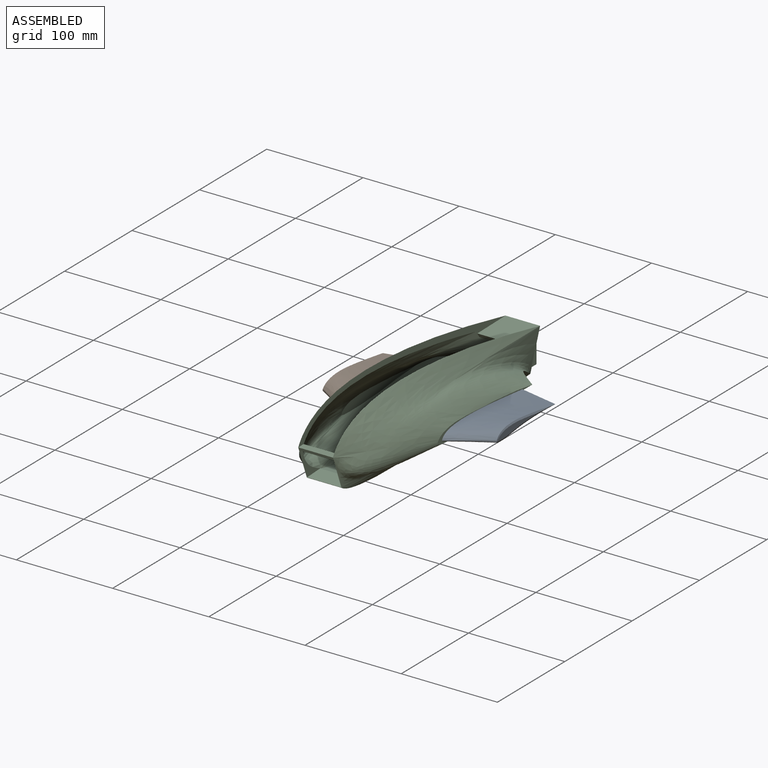
[diagram: assembled view]
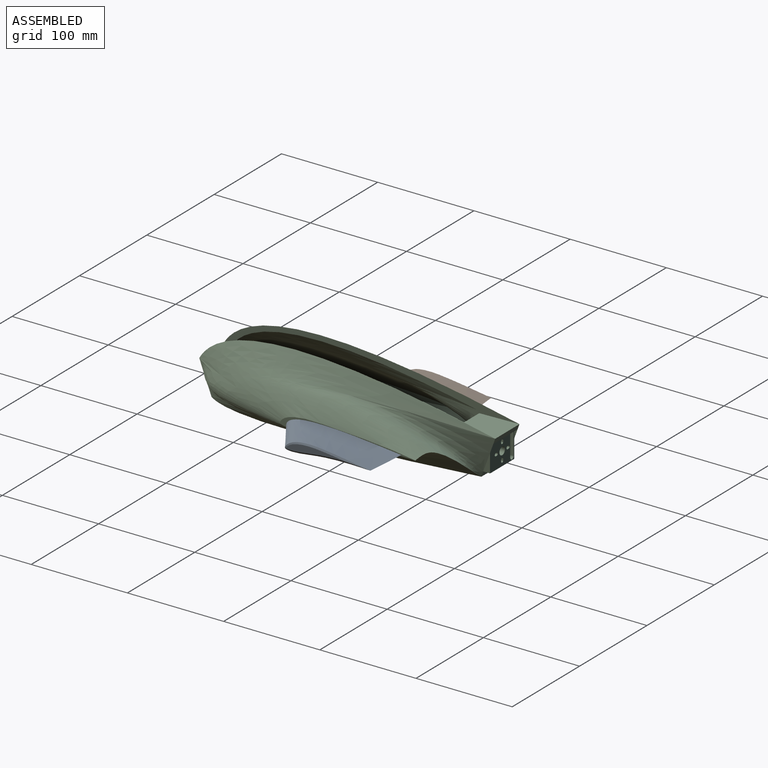
[diagram: assembled view, second angle]
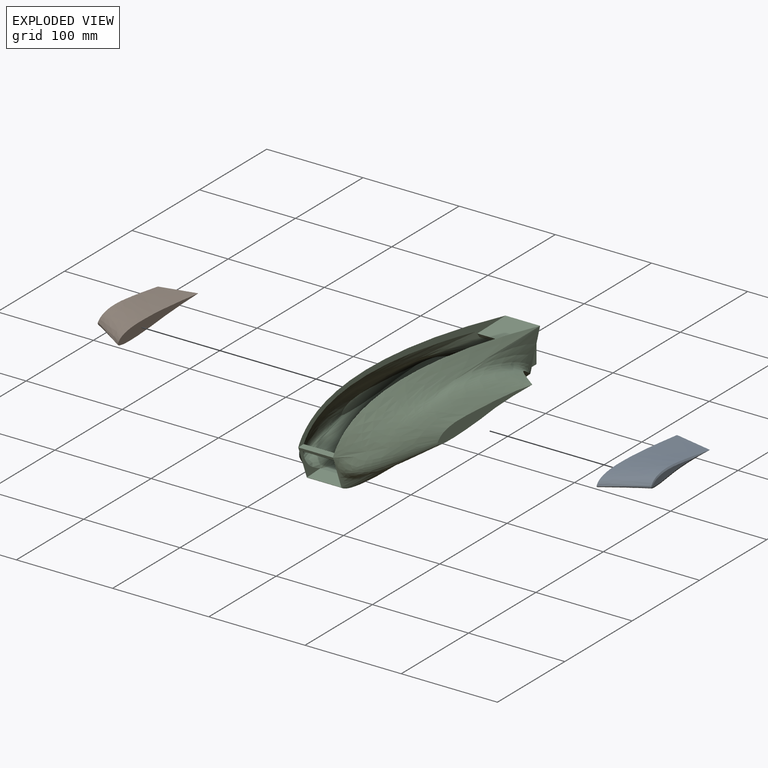
[diagram: exploded view]
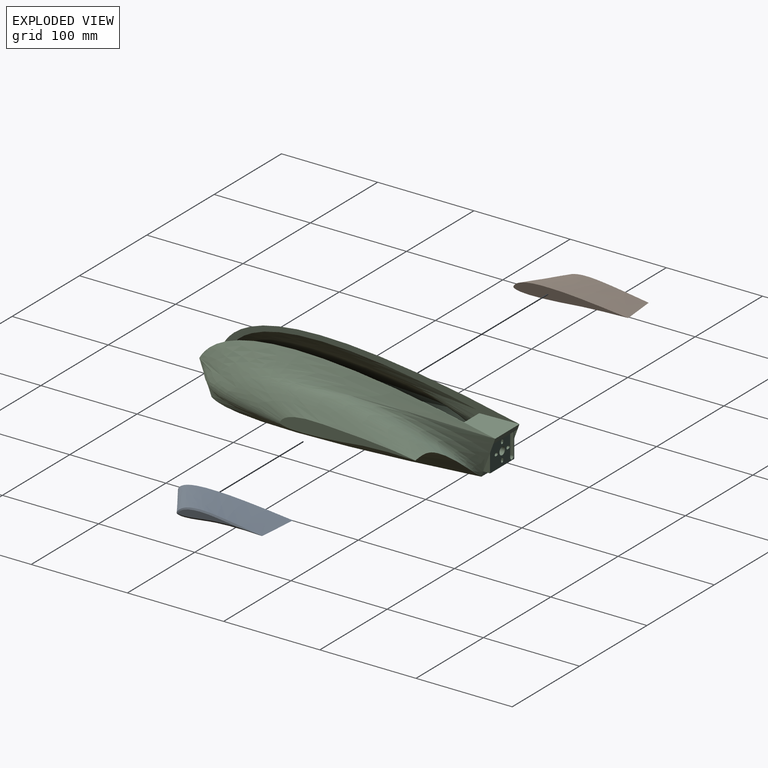
[diagram: exploded view, second angle]
ASSEMBLY  parts=3 mates=2
PART A: 10 faces, bbox 40.5x121x17.1 mm
  f0: plane 63.17x9.94mm, normal (1,0,0), area 267.2mm2, adj f6,f7,f8,f9
  f1: plane 119.57x15.41mm, normal (-1,0,0), area 868.2mm2, adj f2,f3,f4,f5
  f2: bspline ~67.91x39mm, area 1702.2mm2, adj f1,f3,f5,f6
  f3: bspline ~81.4x39mm, area 2411.4mm2, adj f1,f2,f4,f6,f7,f9
  f4: bspline ~69.66x39mm, area 2504.7mm2, adj f1,f3,f5,f9
  f5: bspline ~52.32x39mm, area 1526.5mm2, adj f1,f2,f4,f6,f8
  f6: bspline ~44.91x10.13mm, area 74.7mm2, adj f0,f2,f3,f5,f7,f8
  f7: bspline ~51.74x8.85mm, area 63.2mm2, adj f0,f3,f6,f9
  f8: bspline ~27.73x3.72mm, area 48.6mm2, adj f0,f5,f6,f9
  f9: bspline ~68.34x4.66mm, area 93.1mm2, adj f0,f3,f4,f7,f8
PART B: 10 faces, bbox 40.4x121x17.1 mm
  f0: plane 63.17x9.94mm, normal (-1,0,0), area 267.2mm2, adj f6,f7,f8,f9
  f1: plane 119.57x15.41mm, normal (1,0,0), area 868.2mm2, adj f2,f3,f4,f5
  f2: bspline ~67.91x39mm, area 1702.2mm2, adj f1,f3,f5,f6
  f3: bspline ~81.4x39mm, area 2411.3mm2, adj f1,f2,f4,f6,f7,f9
  f4: bspline ~69.66x39mm, area 2504.7mm2, adj f1,f3,f5,f9
  f5: bspline ~52.32x39mm, area 1526.5mm2, adj f1,f2,f4,f6,f8
  f6: bspline ~44.91x10.13mm, area 74.7mm2, adj f0,f2,f3,f5,f7,f8
  f7: bspline ~45.93x7.97mm, area 63.2mm2, adj f0,f3,f6,f9
  f8: bspline ~27.72x3.72mm, area 49.4mm2, adj f0,f5,f6,f9
  f9: bspline ~68.34x4.66mm, area 93.1mm2, adj f0,f3,f4,f7,f8
PART C: 84 faces, bbox 109.7x326.8x118.2 mm
  f0: plane 9.26x3.39mm, normal (-1,0,0), area 15.7mm2, adj f12,f25,f82
  f1: plane 36x13.34mm, normal (0,0,-1), area 480.4mm2, adj f6,f28,f35,f83
  f2: plane 9.26x3.38mm, normal (1,0,0), area 15.7mm2, adj f25,f40,f82
  f3: plane 38.08x7.72mm, normal (-1,0,0), area 14.4mm2, adj f20,f44
  f4: plane 1.31x0.13mm, normal (-1,0,0), area 0mm2, adj f20,f44,f45
  f5: plane 2.1x0.4mm, normal (-1,0,0), area 0.1mm2, adj f29,f32,f43,f46
  f6: plane 307.61x82.22mm, normal (-1,0,0), area 2008mm2, adj f1,f13,f17,f18,f27,f28,f29,f30
  f7: plane 293.19x52.71mm, normal (-1,0,0), area 227.2mm2, adj f10,f11,f15,f16,f20,f21,f22,f31
  f8: plane 222.76x19.34mm, normal (-1,0,0), area 133.8mm2, adj f16,f20
  f9: plane 147.23x19.09mm, normal (1,0,0), area 1129.2mm2, adj f10,f11,f12,f13
  f10: bspline ~175.69x34.24mm, area 4220.1mm2, adj f7,f9,f11,f13
  f11: bspline ~283.06x38.39mm, area 7064.5mm2, adj f7,f9,f10,f12
  f12: bspline ~241.38x55.55mm, area 6087.4mm2, adj f0,f9,f11,f13,f23,f26,f55
  f13: bspline ~320.59x64.19mm, area 7934.4mm2, adj f6,f9,f10,f12
  f14: plane 110.9x10.97mm, normal (-1,0,0), area 745.6mm2, adj f15,f16,f17,f18
  f15: offset ~181.52x40.18mm, area 3539.5mm2, adj f7,f14,f16,f18,f33
  f16: offset ~288.97x44.12mm, area 5641.5mm2, adj f7,f8,f14,f15,f17,f19,f24
  f17: offset ~244.51x61.24mm, area 4737.9mm2, adj f6,f14,f16,f18,f24,f47
  f18: offset ~323.89x69.75mm, area 6212.2mm2, adj f6,f14,f15,f17,f33
  f19: plane 38.08x7.72mm, normal (1,0,0), area 14.4mm2, adj f16,f20
  f20: extruded ~251.97x36mm, area 9107mm2, adj f3,f4,f7,f8,f19,f21,f24,f34
  f21: plane 36x19.7mm, normal (0,-0.05,1), area 710.2mm2, adj f7,f20,f22,f34
  f22: extruded ~280.34x36mm, area 10150.4mm2, adj f7,f21,f23,f34
  f23: plane 36x5.48mm, normal (0,0.94,-0.34), area 210.1mm2, adj f12,f22,f40,f76
  f24: plane 1.31x0.13mm, normal (1,0,0), area 0mm2, adj f16,f17,f20
  f25: plane 36x3.38mm, normal (0,0,-1), area 121.8mm2, adj f0,f2,f26,f82
  f26: plane 36x5.43mm, normal (0,0.94,-0.34), area 208mm2, adj f12,f25,f27,f40
  f27: plane 41.77x36mm, normal (0,-0.02,1), area 1504.1mm2, adj f6,f26,f28,f35
  f28: extruded ~36x4.56mm, area 197.7mm2, adj f1,f6,f27,f35
  f29: extruded ~36x3.11mm, area 113.3mm2, adj f5,f6,f30,f32,f33,f35
  f30: plane 36x7.83mm, normal (0,-0.02,1), area 281.9mm2, adj f6,f29,f31,f35
  f31: plane 36.01x3.08mm, normal (0,-0.93,-0.36), area 118.6mm2, adj f7,f30,f32,f38
  f32: plane 36x6.15mm, normal (0,0.02,-1), area 221.3mm2, adj f5,f7,f29,f31,f33,f34
  f33: plane 2.1x0.4mm, normal (1,0,0), area 0.1mm2, adj f15,f18,f29,f32
  f34: plane 292.01x49.78mm, normal (1,0,0), area 227.2mm2, adj f20,f21,f22,f32,f38,f39,f43,f44
  f35: plane 307.61x82.18mm, normal (1,0,0), area 2017.5mm2, adj f1,f27,f28,f29,f30,f41,f45,f46
  f36: plane 222.76x19.34mm, normal (1,0,0), area 133.8mm2, adj f20,f44
  f37: plane 147.23x19.09mm, normal (-1,0,0), area 1129.2mm2, adj f38,f39,f40,f41
  f38: bspline ~175.54x33.94mm, area 4220mm2, adj f31,f34,f37,f39,f41
  f39: bspline ~283.06x38.39mm, area 7064.5mm2, adj f34,f37,f38,f40
  f40: bspline ~241.38x55.55mm, area 6087.4mm2, adj f2,f23,f26,f37,f39,f41,f48
  f41: bspline ~320.59x63.81mm, area 7934.4mm2, adj f35,f37,f38,f40
  f42: plane 110.9x10.97mm, normal (1,0,0), area 745.6mm2, adj f43,f44,f45,f46
  f43: offset ~181.52x40.18mm, area 3540.2mm2, adj f5,f34,f42,f44,f46
  f44: offset ~288.97x44.12mm, area 5641.5mm2, adj f3,f4,f34,f36,f42,f43,f45
  f45: offset ~244.51x61.24mm, area 4737.2mm2, adj f4,f35,f42,f44,f46,f56
  f46: offset ~323.89x69.75mm, area 6212.3mm2, adj f5,f35,f42,f43,f45
  f47: plane 5x2.25mm, normal (1,0,0), area 5.7mm2, adj f17,f49,f83
  f48: plane 19.35x7.08mm, normal (-1,0,0), area 68.5mm2, adj f40,f76,f82
  f49: plane 36x2.26mm, normal (0,0,-1), area 81.3mm2, adj f20,f47,f56,f83
  f50: cylinder r=1.5mm len=20mm, axis (0,-1,0), area 99mm2, adj f51,f75,f82,f83
  f51: plane 20x0mm, normal (-0.99,0,0.16), area 0.1mm2, adj f50,f52,f82,f83
  f52: plane 20x1.38mm, normal (0,0,1), area 27.6mm2, adj f51,f53,f82,f83
  f53: cylinder r=1.5mm len=20mm, axis (0,-1,0), area 94.2mm2, adj f52,f54,f82,f83
  f54: plane 20x1.38mm, normal (0,0,-1), area 27.6mm2, adj f53,f75,f82,f83
  f55: plane 19.35x7.08mm, normal (1,0,0), area 68.4mm2, adj f12,f76,f82
  f56: plane 5x2.25mm, normal (-1,0,0), area 5.7mm2, adj f45,f49,f83
  f57: plane 22x20mm, normal (-1,0,0), area 440mm2, adj f58,f77,f82,f83
  f58: cylinder r=2.5mm len=20mm, axis (0,-1,0), area 157.1mm2, adj f57,f59,f82,f83
  f59: plane 22x20mm, normal (1,0,0), area 440mm2, adj f58,f77,f82,f83
  f60: plane 20x0mm, normal (0.16,0,-0.99), area 0.1mm2, adj f61,f78,f82,f83
  f61: cylinder r=1.5mm len=20mm, axis (0,-1,0), area 99mm2, adj f60,f62,f82,f83
  f62: plane 20x0mm, normal (-0.16,0,-0.99), area 0.1mm2, adj f61,f63,f82,f83
  f63: plane 20x1.38mm, normal (-1,0,0), area 27.6mm2, adj f62,f64,f82,f83
  f64: cylinder r=1.5mm len=20mm, axis (0,-1,0), area 94.2mm2, adj f63,f78,f82,f83
  f65: cylinder r=1.5mm len=20mm, axis (0,-1,0), area 99mm2, adj f66,f79,f82,f83
  f66: plane 20x0mm, normal (0.99,0,-0.16), area 0.1mm2, adj f65,f67,f82,f83
  f67: plane 20x1.38mm, normal (0,0,-1), area 27.6mm2, adj f66,f68,f82,f83
  f68: cylinder r=1.5mm len=20mm, axis (0,-1,0), area 94.2mm2, adj f67,f69,f82,f83
  f69: plane 20x1.38mm, normal (0,0,1), area 27.6mm2, adj f68,f79,f82,f83
  f70: cylinder r=1.5mm len=20mm, axis (0,-1,0), area 99mm2, adj f71,f80,f82,f83
  f71: plane 20x0mm, normal (0.16,0,0.99), area 0.1mm2, adj f70,f72,f82,f83
  f72: plane 20x1.38mm, normal (1,0,0), area 27.6mm2, adj f71,f73,f82,f83
  f73: cylinder r=1.5mm len=20mm, axis (0,-1,0), area 94.2mm2, adj f72,f74,f82,f83
  f74: plane 20x1.38mm, normal (-1,0,0), area 27.6mm2, adj f73,f80,f82,f83
  f75: plane 20x0mm, normal (-0.99,0,-0.16), area 0.1mm2, adj f50,f54,f82,f83
  f76: plane 36x7.08mm, normal (0,0,-1), area 254.7mm2, adj f23,f48,f55,f82
  f77: cylinder r=2.5mm len=20mm, axis (0,-1,0), area 157.1mm2, adj f57,f59,f82,f83
  f78: plane 20x1.38mm, normal (1,0,0), area 27.6mm2, adj f60,f64,f82,f83
  f79: plane 20x0mm, normal (0.99,0,0.16), area 0.1mm2, adj f65,f69,f82,f83
  f80: plane 20x0mm, normal (-0.16,0,0.99), area 0.1mm2, adj f70,f74,f82,f83
  f81: cylinder r=4mm len=20mm, axis (0,-1,0), area 502.7mm2, adj f82,f83
  f82: plane 36x28.61mm, normal (0,1,0), area 803.7mm2, adj f0,f2,f25,f48,f50,f51,f52,f53
  f83: plane 36x28.61mm, normal (0,-1,0), area 803.7mm2, adj f1,f6,f35,f47,f49,f50,f51,f52
PLACE A t=(-10.22,-13.42,-5.49)mm
PLACE B t=(-15.42,-13.42,-5.49)mm
PLACE C t=(-9.82,-18.54,-5.49)mm
MATE fastened C.f37 <-> B.f1  axis (-1,0,0) through (-107.42,-2.4,-6.53)mm
MATE fastened C.f9 <-> A.f1  axis (1,0,0) through (-4.22,-2.4,-6.53)mm
